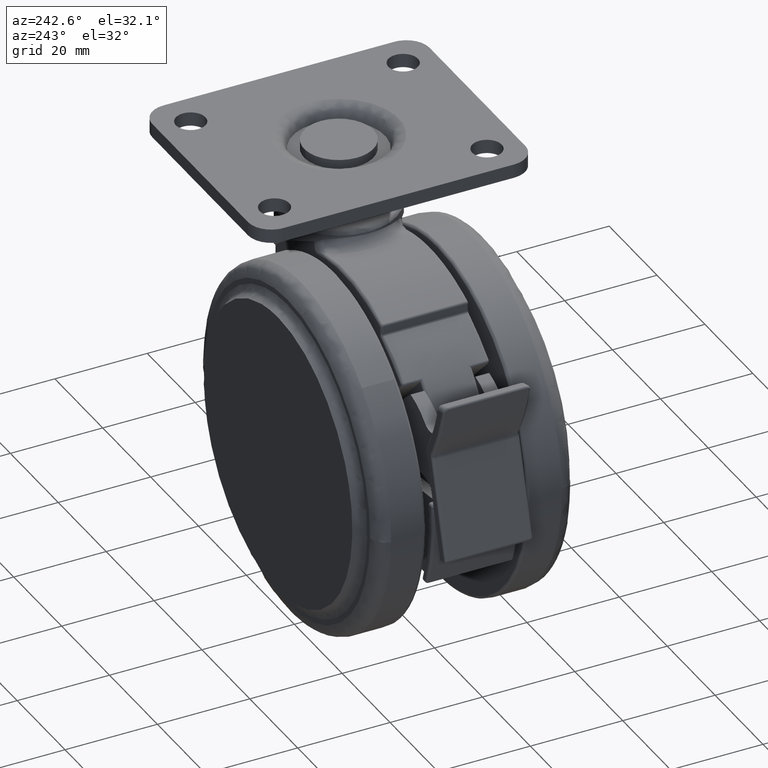
[diagram: clean part render]
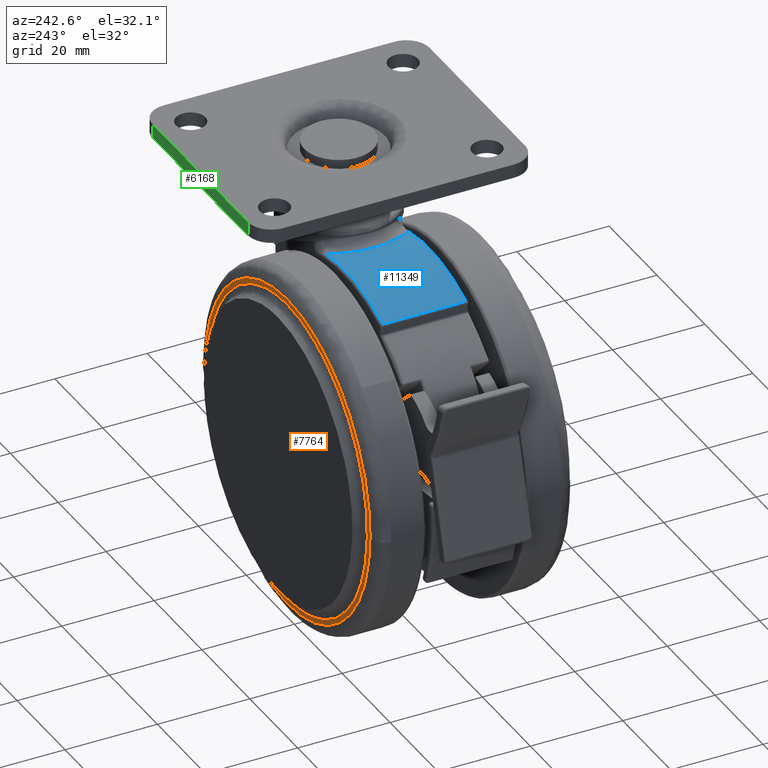
[diagram: same view with three faces highlighted in distinct colors, each labeled with its STEP entity id]
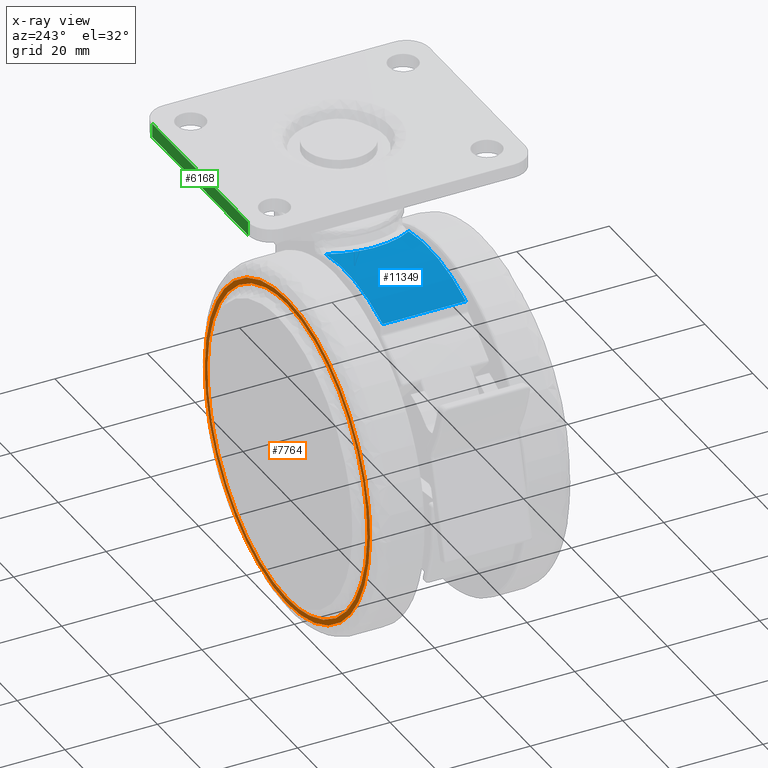
[diagram: x-ray of the same camera — body ghosted, the three highlighted faces saturated]
A machine part, auxiliary view with three faces highlighted in distinct colors.
The next image is the same camera in x-ray (body ghosted, the three faces saturated) — at least one of them is partly hidden behind the body in this view.
Their STEP definitions:

[orange] entity #7764 — the highlighted face is a freeform B-spline surface patch.
#7557=CARTESIAN_POINT('',(-54.497276026947020,21.500000000000028,-40.933528376057950));
#7558=VERTEX_POINT('',#7557);
#7572=CARTESIAN_POINT('',(-20.0,21.500000000000000,-75.000000000000014));
#7573=VERTEX_POINT('',#7572);
#7574=CARTESIAN_POINT('',(-54.497276026947020,21.500000000000028,-40.933528376057950));
#7575=CARTESIAN_POINT('',(-54.069161582702904,21.500000000000004,-75.000000000012051));
#7576=CARTESIAN_POINT('',(-20.0,21.500000000000000,-75.000000000000014));
#7584=(BOUNDED_CURVE()B_SPLINE_CURVE(2,(#7574,#7575,#7576),.UNSPECIFIED.,.F.,.U.)B_SPLINE_CURVE_WITH_KNOTS((3,3),(0.752215704078569,1.0),.UNSPECIFIED.)CURVE()GEOMETRIC_REPRESENTATION_ITEM()RATIONAL_B_SPLINE_CURVE((0.994854295643329,0.709702639984588,1.0))REPRESENTATION_ITEM(''));
#7585=EDGE_CURVE('',#7558,#7573,#7584,.T.);
#7587=CARTESIAN_POINT('',(14.497276026947020,21.499999999999972,-40.066471623942050));
#7588=VERTEX_POINT('',#7587);
#7589=CARTESIAN_POINT('',(-20.0,21.500000000000000,-75.000000000000014));
#7590=CARTESIAN_POINT('',(14.500000000946081,21.499999999999982,-74.999999999988134));
#7591=CARTESIAN_POINT('',(14.500000001904130,21.499999999999972,-40.499999999976083));
#7592=CARTESIAN_POINT('',(14.500000001910150,21.499999999999975,-40.283227254226688));
#7593=CARTESIAN_POINT('',(14.497276026947020,21.499999999999972,-40.066471623942050));
#7601=(BOUNDED_CURVE()B_SPLINE_CURVE(2,(#7589,#7590,#7591,#7592,#7593),.UNSPECIFIED.,.F.,.U.)B_SPLINE_CURVE_WITH_KNOTS((3,2,3),(0.0,0.250000000000000,0.252215704078569),.UNSPECIFIED.)CURVE()GEOMETRIC_REPRESENTATION_ITEM()RATIONAL_B_SPLINE_CURVE((1.0,0.707106781186548,1.0,0.997404141201960,0.994854295643329))REPRESENTATION_ITEM(''));
#7602=EDGE_CURVE('',#7573,#7588,#7601,.T.);
#7651=CARTESIAN_POINT('',(-20.0,21.500000000000000,-5.999999999999998));
#7652=VERTEX_POINT('',#7651);
#7653=CARTESIAN_POINT('',(14.497276026947020,21.499999999999972,-40.066471623942050));
#7654=CARTESIAN_POINT('',(14.069161582702893,21.499999999999993,-5.999999999987961));
#7655=CARTESIAN_POINT('',(-20.0,21.500000000000000,-5.999999999999998));
#7663=(BOUNDED_CURVE()B_SPLINE_CURVE(2,(#7653,#7654,#7655),.UNSPECIFIED.,.F.,.U.)B_SPLINE_CURVE_WITH_KNOTS((3,3),(0.252215704078569,0.500000000000000),.UNSPECIFIED.)CURVE()GEOMETRIC_REPRESENTATION_ITEM()RATIONAL_B_SPLINE_CURVE((0.994854295643329,0.709702639984588,1.0))REPRESENTATION_ITEM(''));
#7664=EDGE_CURVE('',#7588,#7652,#7663,.T.);
#7666=CARTESIAN_POINT('',(-20.0,21.500000000000000,-5.999999999999998));
#7667=CARTESIAN_POINT('',(-54.500000000946081,21.500000000000011,-6.000000000011887));
#7668=CARTESIAN_POINT('',(-54.500000001904127,21.500000000000028,-40.500000000023931));
#7669=CARTESIAN_POINT('',(-54.500000001910159,21.500000000000036,-40.716772745773312));
#7670=CARTESIAN_POINT('',(-54.497276026947020,21.500000000000028,-40.933528376057950));
#7678=(BOUNDED_CURVE()B_SPLINE_CURVE(2,(#7666,#7667,#7668,#7669,#7670),.UNSPECIFIED.,.F.,.U.)B_SPLINE_CURVE_WITH_KNOTS((3,2,3),(0.500000000000000,0.750000000000000,0.752215704078569),.UNSPECIFIED.)CURVE()GEOMETRIC_REPRESENTATION_ITEM()RATIONAL_B_SPLINE_CURVE((1.0,0.707106781186548,1.0,0.997404141201960,0.994854295643329))REPRESENTATION_ITEM(''));
#7679=EDGE_CURVE('',#7652,#7558,#7678,.T.);
#7687=CARTESIAN_POINT('',(17.943553768314199,21.500000000000000,-2.553450133735389));
#7688=CARTESIAN_POINT('',(17.943553768314199,21.500000000000000,-78.446551716988836));
#7689=CARTESIAN_POINT('',(-57.943555618892290,21.500000000000000,-2.553450133735389));
#7690=CARTESIAN_POINT('',(-57.943555618892290,21.500000000000000,-78.446551716988836));
#7691=B_SPLINE_SURFACE_WITH_KNOTS('',1,1,((#7687,#7689),(#7688,#7690)),.UNSPECIFIED.,.F.,.F.,.U.,(2,2),(2,2),(0.0,75.893101583253440),(0.0,75.887109387206493),.UNSPECIFIED.);
#7692=ORIENTED_EDGE('',*,*,#7585,.F.);
#7693=ORIENTED_EDGE('',*,*,#7679,.F.);
#7694=ORIENTED_EDGE('',*,*,#7664,.F.);
#7695=ORIENTED_EDGE('',*,*,#7602,.F.);
#7696=EDGE_LOOP('',(#7692,#7693,#7694,#7695));
#7697=FACE_OUTER_BOUND('',#7696,.T.);
#7698=CARTESIAN_POINT('',(-20.0,21.500000000000000,-7.116724942436252));
#7699=VERTEX_POINT('',#7698);
#7700=CARTESIAN_POINT('',(-53.004433127192357,21.499999999689958,-35.484977838047683));
#7701=VERTEX_POINT('',#7700);
#7702=CARTESIAN_POINT('',(-20.0,21.500000000000000,-7.116724942436252));
#7703=CARTESIAN_POINT('',(-48.693878349336892,21.499999999844974,-7.116724942702631));
#7704=CARTESIAN_POINT('',(-53.004433127192364,21.499999999689955,-35.484977838047683));
#7712=(BOUNDED_CURVE()B_SPLINE_CURVE(2,(#7702,#7703,#7704),.UNSPECIFIED.,.F.,.U.)B_SPLINE_CURVE_WITH_KNOTS((3,3),(0.500000000000000,0.724102415375611),.UNSPECIFIED.)CURVE()GEOMETRIC_REPRESENTATION_ITEM()RATIONAL_B_SPLINE_CURVE((1.0,0.737447688867071,0.945604234432849))REPRESENTATION_ITEM(''));
#7713=EDGE_CURVE('',#7699,#7701,#7712,.T.);
#7714=ORIENTED_EDGE('',*,*,#7713,.T.);
#7715=CARTESIAN_POINT('',(-20.0,21.500000000000039,-73.883275057563750));
#7716=VERTEX_POINT('',#7715);
#7717=CARTESIAN_POINT('',(-53.004433127192364,21.499999999689955,-35.484977838047683));
#7718=CARTESIAN_POINT('',(-53.383275054171541,21.499999999700023,-37.978179789532213));
#7719=CARTESIAN_POINT('',(-53.383275054303972,21.499999999711729,-40.500000000495341));
#7720=CARTESIAN_POINT('',(-53.383275056056974,21.499999999866780,-73.883275057792730));
#7721=CARTESIAN_POINT('',(-20.0,21.500000000000039,-73.883275057563750));
#7729=(BOUNDED_CURVE()B_SPLINE_CURVE(2,(#7717,#7718,#7719,#7720,#7721),.UNSPECIFIED.,.F.,.U.)B_SPLINE_CURVE_WITH_KNOTS((3,2,3),(0.724102415375611,0.750000000000000,1.0),.UNSPECIFIED.)CURVE()GEOMETRIC_REPRESENTATION_ITEM()RATIONAL_B_SPLINE_CURVE((0.945604234432849,0.969659092319476,1.0,0.707106781186547,1.0))REPRESENTATION_ITEM(''));
#7730=EDGE_CURVE('',#7701,#7716,#7729,.T.);
#7731=ORIENTED_EDGE('',*,*,#7730,.T.);
#7732=CARTESIAN_POINT('',(13.004433127192369,21.499999999689908,-45.515022161952309));
#7733=VERTEX_POINT('',#7732);
#7734=CARTESIAN_POINT('',(-20.0,21.500000000000039,-73.883275057563750));
#7735=CARTESIAN_POINT('',(8.693878349336909,21.499999999844967,-73.883275057297396));
#7736=CARTESIAN_POINT('',(13.004433127192369,21.499999999689905,-45.515022161952309));
#7744=(BOUNDED_CURVE()B_SPLINE_CURVE(2,(#7734,#7735,#7736),.UNSPECIFIED.,.F.,.U.)B_SPLINE_CURVE_WITH_KNOTS((3,3),(0.0,0.224102415375612),.UNSPECIFIED.)CURVE()GEOMETRIC_REPRESENTATION_ITEM()RATIONAL_B_SPLINE_CURVE((1.0,0.737447688867071,0.945604234432850))REPRESENTATION_ITEM(''));
#7745=EDGE_CURVE('',#7716,#7733,#7744,.T.);
#7746=ORIENTED_EDGE('',*,*,#7745,.T.);
#7747=CARTESIAN_POINT('',(13.004433127192369,21.499999999689905,-45.515022161952309));
#7748=CARTESIAN_POINT('',(13.383275054171554,21.499999999699973,-43.021820210467801));
#7749=CARTESIAN_POINT('',(13.383275054303970,21.499999999711680,-40.499999999504688));
#7750=CARTESIAN_POINT('',(13.383275056056986,21.499999999866738,-7.116724942207305));
#7751=CARTESIAN_POINT('',(-20.0,21.500000000000000,-7.116724942436252));
#7759=(BOUNDED_CURVE()B_SPLINE_CURVE(2,(#7747,#7748,#7749,#7750,#7751),.UNSPECIFIED.,.F.,.U.)B_SPLINE_CURVE_WITH_KNOTS((3,2,3),(0.224102415375612,0.250000000000000,0.500000000000000),.UNSPECIFIED.)CURVE()GEOMETRIC_REPRESENTATION_ITEM()RATIONAL_B_SPLINE_CURVE((0.945604234432850,0.969659092319476,1.0,0.707106781186547,1.0))REPRESENTATION_ITEM(''));
#7760=EDGE_CURVE('',#7733,#7699,#7759,.T.);
#7761=ORIENTED_EDGE('',*,*,#7760,.T.);
#7762=EDGE_LOOP('',(#7714,#7731,#7746,#7761));
#7763=FACE_BOUND('',#7762,.T.);
#7764=ADVANCED_FACE('',(#7697,#7763),#7691,.T.);

[blue] entity #11349 — the highlighted face is a freeform B-spline surface patch.
#11255=CARTESIAN_POINT('',(-36.006007562716917,9.450000000000202,-6.587499032034479));
#11256=CARTESIAN_POINT('',(-36.006007562716917,-9.461249999999803,-6.587499032034479));
#11257=CARTESIAN_POINT('',(-23.755039263968563,9.450000000000200,-0.805292304621610));
#11258=CARTESIAN_POINT('',(-23.755039263968563,-9.461249999999801,-0.805292304621610));
#11259=CARTESIAN_POINT('',(-10.637121322097373,9.450000000000204,-4.187653575362727));
#11260=CARTESIAN_POINT('',(-10.637121322097373,-9.461249999999804,-4.187653575362727));
#11268=(BOUNDED_SURFACE()B_SPLINE_SURFACE(1,2,((#11255,#11257,#11259),(#11256,#11258,#11260)),.UNSPECIFIED.,.F.,.F.,.U.)B_SPLINE_SURFACE_WITH_KNOTS((2,2),(3,3),(0.0,18.911250000000010),(0.0,26.263301251575630),.UNSPECIFIED.)GEOMETRIC_REPRESENTATION_ITEM()RATIONAL_B_SPLINE_SURFACE(((1.0,0.938680636878398,0.996110500960857),(1.0,0.938680636878398,0.996110500960857)))REPRESENTATION_ITEM('')SURFACE());
#11269=CARTESIAN_POINT('',(-35.709459459458500,-8.999999999999799,-6.449113322974390));
#11270=VERTEX_POINT('',#11269);
#11271=CARTESIAN_POINT('',(-11.805838924907199,-8.999999999999799,-3.906206478756240));
#11272=VERTEX_POINT('',#11271);
#11273=CARTESIAN_POINT('',(-35.709459459458543,-8.999999999999799,-6.449113322974355));
#11274=CARTESIAN_POINT('',(-24.187863329243910,-8.999999999999799,-1.133596900960702));
#11275=CARTESIAN_POINT('',(-11.805838924907190,-8.999999999999799,-3.906206478756183));
#11283=(BOUNDED_CURVE()B_SPLINE_CURVE(2,(#11273,#11274,#11275),.UNSPECIFIED.,.F.,.U.)CURVE()GEOMETRIC_REPRESENTATION_ITEM()QUASI_UNIFORM_CURVE()RATIONAL_B_SPLINE_CURVE((1.0,0.947244007059714,1.0))REPRESENTATION_ITEM(''));
#11284=EDGE_CURVE('',#11270,#11272,#11283,.T.);
#11285=ORIENTED_EDGE('',*,*,#11284,.T.);
#11286=CARTESIAN_POINT('',(-11.805838924906920,9.000000000000199,-3.906206478756300));
#11287=VERTEX_POINT('',#11286);
#11288=CARTESIAN_POINT('',(-11.805838924907199,-8.999999999999799,-3.906206478756240));
#11289=CARTESIAN_POINT('',(-11.926650063302940,-8.839252002661658,-3.879154188397077));
#11290=CARTESIAN_POINT('',(-12.044111540557211,-8.675958238471267,-3.853479611839831));
#11291=CARTESIAN_POINT('',(-12.272341719500860,-8.344315569630147,-3.804674477002289));
#11292=CARTESIAN_POINT('',(-12.383260513504100,-8.175720942855342,-3.781513743864881));
#11293=CARTESIAN_POINT('',(-12.704610587112450,-7.664525689144370,-3.715830759647895));
#11294=CARTESIAN_POINT('',(-12.903669174919500,-7.316621710246329,-3.677082361884552));
#11295=CARTESIAN_POINT('',(-13.456675444742549,-6.252393314288932,-3.573375431617504));
#11296=CARTESIAN_POINT('',(-13.766737253476659,-5.515690235254415,-3.520798847902592));
#11297=CARTESIAN_POINT('',(-14.081060400969941,-4.561253822078476,-3.470009328009770));
#11298=CARTESIAN_POINT('',(-14.140239556041211,-4.368677583159531,-3.460610731442236));
#11299=CARTESIAN_POINT('',(-14.251133852645641,-3.980113683509821,-3.443236948322924));
#11300=CARTESIAN_POINT('',(-14.302877804968221,-3.783969623384966,-3.435257591657548));
#11301=CARTESIAN_POINT('',(-14.398338713238401,-3.390140085416443,-3.420710336762117));
#11302=CARTESIAN_POINT('',(-14.442164639874450,-3.192007814944516,-3.414125617027332));
#11303=CARTESIAN_POINT('',(-14.521605720781089,-2.795449523399484,-3.402307231293860));
#11304=CARTESIAN_POINT('',(-14.557252206753819,-2.596941671337482,-3.397068594576617));
#11305=CARTESIAN_POINT('',(-14.715455265497420,-1.603279406154955,-3.373999062487971));
#11306=CARTESIAN_POINT('',(-14.778335160212571,-0.804780264794485,-3.365323263524406));
#11307=CARTESIAN_POINT('',(-14.778553561338910,0.398230927775019,-3.365292554086371));
#11308=CARTESIAN_POINT('',(-14.762862492008670,0.800116478744403,-3.367488309329601));
#11309=CARTESIAN_POINT('',(-14.715113284378770,1.404299999150554,-3.374264575137401));
#11310=CARTESIAN_POINT('',(-14.695097261854670,1.606350870604196,-3.377114975557455));
#11311=CARTESIAN_POINT('',(-14.647190100132869,2.008072833284444,-3.383992512999909));
#11312=CARTESIAN_POINT('',(-14.619310736305950,2.207853623263223,-3.388017937216486));
#11313=CARTESIAN_POINT('',(-14.460555190439610,3.201425114573143,-3.411173859305354));
#11314=CARTESIAN_POINT('',(-14.271994841340900,3.979332644004980,-3.439184762139114));
#11315=CARTESIAN_POINT('',(-13.897171617744140,5.120679773975009,-3.499709419589014));
#11316=CARTESIAN_POINT('',(-13.756823739424631,5.496854230182184,-3.523008739348636));
#11317=CARTESIAN_POINT('',(-13.522513298482020,6.054481093038886,-3.563589113729748));
#11318=CARTESIAN_POINT('',(-13.440270334928201,6.239593714801405,-3.578088668624844));
#11319=CARTESIAN_POINT('',(-13.268790964895530,6.605211293179017,-3.608965661471623));
#11320=CARTESIAN_POINT('',(-13.179526651682400,6.785828933624313,-3.625346772360298));
#11321=CARTESIAN_POINT('',(-12.715720968238170,7.677998888504802,-3.712341789016044));
#11322=CARTESIAN_POINT('',(-12.289070399486400,8.357025413212011,-3.798000245998258));
#11323=CARTESIAN_POINT('',(-11.805838924906920,9.000000000000199,-3.906206478756295));
#11324=B_SPLINE_CURVE_WITH_KNOTS('',3,(#11288,#11289,#11290,#11291,#11292,#11293,#11294,#11295,#11296,#11297,#11298,#11299,#11300,#11301,#11302,#11303,#11304,#11305,#11306,#11307,#11308,#11309,#11310,#11311,#11312,#11313,#11314,#11315,#11316,#11317,#11318,#11319,#11320,#11321,#11322,#11323),.UNSPECIFIED.,.F.,.U.,(4,2,2,2,2,2,2,2,2,2,2,2,2,2,2,2,2,4),(0.0,0.031250000000000,0.062500000000000,0.125000000000000,0.250000000000000,0.281250000000000,0.312500000000000,0.343750000000000,0.375000000000000,0.500000000000000,0.562500000000000,0.593750000000000,0.625000000000000,0.750000000000000,0.812500000000000,0.843750000000000,0.875000000000000,1.0),.UNSPECIFIED.);
#11325=EDGE_CURVE('',#11272,#11287,#11324,.T.);
#11326=ORIENTED_EDGE('',*,*,#11325,.T.);
#11327=CARTESIAN_POINT('',(-35.709459459458500,9.000000000000199,-6.449113322974390));
#11328=VERTEX_POINT('',#11327);
#11329=CARTESIAN_POINT('',(-11.805838924906920,9.000000000000199,-3.906206478756300));
#11330=CARTESIAN_POINT('',(-24.187863329243743,9.000000000000199,-1.133596900960633));
#11331=CARTESIAN_POINT('',(-35.709459459458522,9.000000000000199,-6.449113322974341));
#11339=(BOUNDED_CURVE()B_SPLINE_CURVE(2,(#11329,#11330,#11331),.UNSPECIFIED.,.F.,.U.)CURVE()GEOMETRIC_REPRESENTATION_ITEM()QUASI_UNIFORM_CURVE()RATIONAL_B_SPLINE_CURVE((1.0,0.947244007059712,1.0))REPRESENTATION_ITEM(''));
#11340=EDGE_CURVE('',#11287,#11328,#11339,.T.);
#11341=ORIENTED_EDGE('',*,*,#11340,.T.);
#11342=CARTESIAN_POINT('',(-35.709459459458500,9.000000000000199,-6.449113322974390));
#11343=CARTESIAN_POINT('',(-35.709459459458500,-8.999999999999799,-6.449113322974390));
#11344=QUASI_UNIFORM_CURVE('',1,(#11342,#11343),.UNSPECIFIED.,.F.,.U.);
#11345=EDGE_CURVE('',#11328,#11270,#11344,.T.);
#11346=ORIENTED_EDGE('',*,*,#11345,.T.);
#11347=EDGE_LOOP('',(#11285,#11326,#11341,#11346));
#11348=FACE_OUTER_BOUND('',#11347,.T.);
#11349=ADVANCED_FACE('',(#11348),#11268,.T.);

[green] entity #6168 — the highlighted face is a freeform B-spline surface patch.
#5755=CARTESIAN_POINT('',(19.999999999995602,30.0,11.000000000000121));
#5756=VERTEX_POINT('',#5755);
#5757=CARTESIAN_POINT('',(-20.000000000004551,30.0,11.000000000000121));
#5758=VERTEX_POINT('',#5757);
#5759=CARTESIAN_POINT('',(19.999999999995602,30.0,11.000000000000121));
#5760=CARTESIAN_POINT('',(-20.000000000004551,30.0,11.000000000000121));
#5761=QUASI_UNIFORM_CURVE('',1,(#5759,#5760),.UNSPECIFIED.,.F.,.U.);
#5762=EDGE_CURVE('',#5756,#5758,#5761,.T.);
#5883=CARTESIAN_POINT('',(19.999999999995602,30.0,14.0));
#5884=VERTEX_POINT('',#5883);
#5885=CARTESIAN_POINT('',(-20.000000000004551,30.0,14.0));
#5886=VERTEX_POINT('',#5885);
#5887=CARTESIAN_POINT('',(19.999999999995602,30.0,14.0));
#5888=CARTESIAN_POINT('',(-20.000000000004551,30.0,14.0));
#5889=QUASI_UNIFORM_CURVE('',1,(#5887,#5888),.UNSPECIFIED.,.F.,.U.);
#5890=EDGE_CURVE('',#5884,#5886,#5889,.T.);
#6020=CARTESIAN_POINT('',(19.999999999995602,30.0,14.0));
#6021=CARTESIAN_POINT('',(19.999999999995602,30.0,11.000000000000121));
#6022=QUASI_UNIFORM_CURVE('',1,(#6020,#6021),.UNSPECIFIED.,.F.,.U.);
#6023=EDGE_CURVE('',#5884,#5756,#6022,.T.);
#6149=CARTESIAN_POINT('',(-20.000000000004551,30.0,14.0));
#6150=CARTESIAN_POINT('',(-20.000000000004551,30.0,11.000000000000121));
#6151=QUASI_UNIFORM_CURVE('',1,(#6149,#6150),.UNSPECIFIED.,.F.,.U.);
#6152=EDGE_CURVE('',#5886,#5758,#6151,.T.);
#6157=CARTESIAN_POINT('',(-21.997999922476790,30.0,14.149849994185420));
#6158=CARTESIAN_POINT('',(-21.997999922476790,30.0,10.850149925348431));
#6159=CARTESIAN_POINT('',(21.998000995351450,30.0,14.149849994185420));
#6160=CARTESIAN_POINT('',(21.998000995351450,30.0,10.850149925348431));
#6161=B_SPLINE_SURFACE_WITH_KNOTS('',1,1,((#6157,#6159),(#6158,#6160)),.UNSPECIFIED.,.F.,.F.,.U.,(2,2),(2,2),(0.0,3.299700068836980),(0.0,43.996000917828241),.UNSPECIFIED.);
#6162=ORIENTED_EDGE('',*,*,#5762,.T.);
#6163=ORIENTED_EDGE('',*,*,#6152,.F.);
#6164=ORIENTED_EDGE('',*,*,#5890,.F.);
#6165=ORIENTED_EDGE('',*,*,#6023,.T.);
#6166=EDGE_LOOP('',(#6162,#6163,#6164,#6165));
#6167=FACE_OUTER_BOUND('',#6166,.T.);
#6168=ADVANCED_FACE('',(#6167),#6161,.F.);